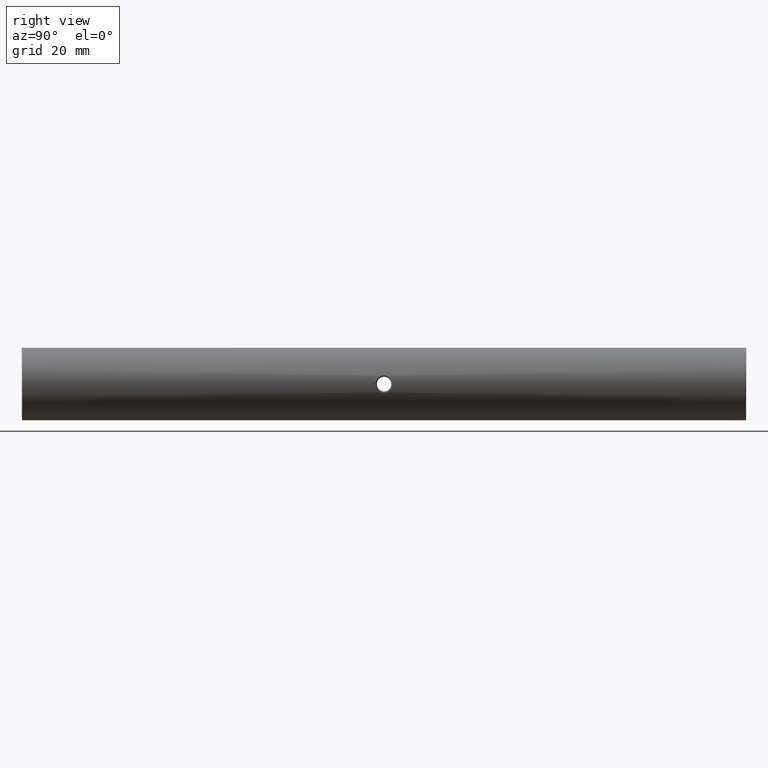
[diagram: clean part render]
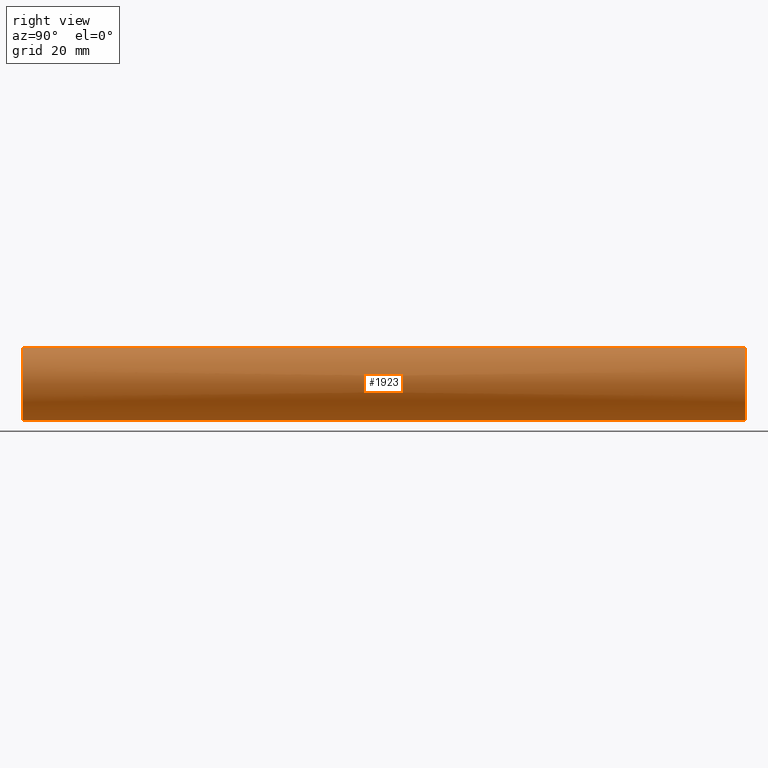
[diagram: same view with one face highlighted and labeled with its STEP entity id]
A machine part, right view. The second image highlights one B-rep face of the part: STEP entity #1923.
In plain terms, the highlighted cylindrical surface (edge-blend (fillet) strip) has radius 12.5 mm, axis along (-0, -1, -0).
Its self-contained STEP definition (entity closure, byte-faithful):
#6 = CARTESIAN_POINT ( 'NONE',  ( 12.50001742646893454, 2.811406832372070674, 0.09320650238485968242 ) ) ;
#17 = CARTESIAN_POINT ( 'NONE',  ( 0.000000000000000000, 125.0000000000000000, 0.000000000000000000 ) ) ;
#50 = FACE_OUTER_BOUND ( 'NONE', #2107, .T. ) ;
#56 = CARTESIAN_POINT ( 'NONE',  ( 12.28503912838034395, 1.717904660272273620, 2.310707177336799312 ) ) ;
#96 = AXIS2_PLACEMENT_3D ( 'NONE', #1967, #855, #1675 ) ;
#113 = CARTESIAN_POINT ( 'NONE',  ( 12.15669300407731868, -0.1806977645217724693, 2.909435551835375833 ) ) ;
#154 = LINE ( 'NONE', #1784, #834 ) ;
#157 = CIRCLE ( 'NONE', #96, 12.50000000000000000 ) ;
#170 = CARTESIAN_POINT ( 'NONE',  ( 12.43454952353370402, -2.526725548024669976, -1.289546388242241770 ) ) ;
#188 = CARTESIAN_POINT ( 'NONE',  ( 12.49999775423413695, -2.811326542414163132, 0.09552809925310641603 ) ) ;
#308 = CARTESIAN_POINT ( 'NONE',  ( 12.41846603794856030, 2.454658217890273164, -1.468101736930677026 ) ) ;
#323 = AXIS2_PLACEMENT_3D ( 'NONE', #17, #2213, #1939 ) ;
#345 = CARTESIAN_POINT ( 'NONE',  ( 12.15680486440276553, 0.3698971933534662138, 2.908968131743188579 ) ) ;
#366 = CARTESIAN_POINT ( 'NONE',  ( 0.000000000000000000, -124.7500000000000000, -12.50000000000000000 ) ) ;
#417 = CARTESIAN_POINT ( 'NONE',  ( 12.49455810811152467, -2.788668963899861630, 0.3809916402104622235 ) ) ;
#450 = CARTESIAN_POINT ( 'NONE',  ( 12.47844996932804484, -2.720695490879249334, 0.7572105576887994127 ) ) ;
#511 = DIRECTION ( 'NONE',  ( 0.000000000000000000, 0.000000000000000000, 1.000000000000000000 ) ) ;
#532 = DIRECTION ( 'NONE',  ( -0.000000000000000000, -1.000000000000000000, -0.000000000000000000 ) ) ;
#535 = B_SPLINE_CURVE_WITH_KNOTS ( 'NONE', 3,
 ( #559, #345, #1896, #1425, #2500, #56, #892, #1408, #818, #1356, #2485, #2012, #675, #1913, #2465, #609, #6, #1642, #1694, #2239, #2772, #308, #1153, #1097, #3258, #2721, #1947, #1117, #1928, #2185 ),
 .UNSPECIFIED., .F., .F.,
 ( 4, 2, 2, 2, 2, 2, 2, 2, 2, 2, 2, 2, 2, 2, 4 ),
 ( 0.5000000000000000000, 0.5625000000000000000, 0.5937500000000000000, 0.6250000000000000000, 0.6562500000000000000, 0.6874999999999998890, 0.7187499999999998890, 0.7343749999999998890, 0.7499999999999998890, 0.7812499999999998890, 0.8124999999999998890, 0.8750000000000000000, 0.9062500000000000000, 0.9375000000000000000, 1.000000000000000000 ),
 .UNSPECIFIED. ) ;
#559 = CARTESIAN_POINT ( 'NONE',  ( 12.15673029085246881, 0.002833888103306873157, 2.909279745137979933 ) ) ;
#561 = CARTESIAN_POINT ( 'NONE',  ( 12.22399603071617591, -1.249077798624699920, -2.613339121771871998 ) ) ;
#576 = CARTESIAN_POINT ( 'NONE',  ( 12.24318725703097677, -1.411610399206351341, -2.523076013741905932 ) ) ;
#589 = EDGE_CURVE ( 'NONE', #2177, #1485, #1850, .T. ) ;
#609 = CARTESIAN_POINT ( 'NONE',  ( 12.49892673353620864, 2.806890378891141680, 0.1896830695247965770 ) ) ;
#645 = CARTESIAN_POINT ( 'NONE',  ( 12.37415655752215038, -2.233985131134097912, -1.776478034581461252 ) ) ;
#661 = CARTESIAN_POINT ( 'NONE',  ( 12.17878772991662295, -0.7310015626569855707, 2.815779754070811602 ) ) ;
#675 = CARTESIAN_POINT ( 'NONE',  ( 12.47862501962675452, 2.721439315795266101, 0.7542223845553261974 ) ) ;
#715 = CARTESIAN_POINT ( 'NONE',  ( 1.530808498934191521E-15, -124.7500000000000000, 12.50000000000000000 ) ) ;
#818 = CARTESIAN_POINT ( 'NONE',  ( 12.37468298182074022, 2.236657868075531130, 1.772684525035449044 ) ) ;
#834 = VECTOR ( 'NONE', #1266, 1000.000000000000000 ) ;
#855 = DIRECTION ( 'NONE',  ( 0.000000000000000000, 1.000000000000000000, 0.000000000000000000 ) ) ;
#892 = CARTESIAN_POINT ( 'NONE',  ( 12.30724739963356740, 1.858754287803308536, 2.190976865712782384 ) ) ;
#931 = CARTESIAN_POINT ( 'NONE',  ( 12.49892345651008796, -2.806873595488794226, 0.1898667300704691974 ) ) ;
#997 = CARTESIAN_POINT ( 'NONE',  ( 12.15673029085246881, 0.002833888103306873157, 2.909279745137979933 ) ) ;
#1065 = EDGE_CURVE ( 'NONE', #2491, #1180, #157, .T. ) ;
#1097 = CARTESIAN_POINT ( 'NONE',  ( 12.30699028326935540, 1.857116966160690108, -2.192346392289706181 ) ) ;
#1105 = EDGE_LOOP ( 'NONE', ( #1210, #1448 ) ) ;
#1117 = CARTESIAN_POINT ( 'NONE',  ( 12.17558374076325123, 0.7370412096073619690, -2.833290726123229852 ) ) ;
#1153 = CARTESIAN_POINT ( 'NONE',  ( 12.37399410913008069, 2.245426296468445937, -1.791044369160586180 ) ) ;
#1180 = VERTEX_POINT ( 'NONE', #366 ) ;
#1210 = ORIENTED_EDGE ( 'NONE', *, *, #1327, .T. ) ;
#1224 = AXIS2_PLACEMENT_3D ( 'NONE', #1849, #2367, #511 ) ;
#1259 = CARTESIAN_POINT ( 'NONE',  ( 12.50000448113715024, -2.811349800629793450, -0.1901732525159168796 ) ) ;
#1266 = DIRECTION ( 'NONE',  ( -0.000000000000000000, -1.000000000000000000, -0.000000000000000000 ) ) ;
#1326 = CARTESIAN_POINT ( 'NONE',  ( 1.530808498934191521E-15, 125.0000000000000000, 12.50000000000000000 ) ) ;
#1327 = EDGE_CURVE ( 'NONE', #3048, #3067, #1639, .T. ) ;
#1356 = CARTESIAN_POINT ( 'NONE',  ( 12.41570173647606445, 2.439719071827106678, 1.457923083269265341 ) ) ;
#1376 = CARTESIAN_POINT ( 'NONE',  ( 12.15674719806125026, -0.3720517654760188697, -2.909209096632632718 ) ) ;
#1397 = ORIENTED_EDGE ( 'NONE', *, *, #589, .T. ) ;
#1408 = CARTESIAN_POINT ( 'NONE',  ( 12.35225443296574177, 2.119287620186417698, 1.921074856728379965 ) ) ;
#1425 = CARTESIAN_POINT ( 'NONE',  ( 12.22404049168225448, 1.249370825544497743, 2.613123236432066676 ) ) ;
#1448 = ORIENTED_EDGE ( 'NONE', *, *, #2733, .T. ) ;
#1476 = CARTESIAN_POINT ( 'NONE',  ( 12.41559087114069371, -2.439236040037762621, -1.459016119810419676 ) ) ;
#1485 = VERTEX_POINT ( 'NONE', #1493 ) ;
#1493 = CARTESIAN_POINT ( 'NONE',  ( 1.530808498934191521E-15, 124.7500000000000000, 12.50000000000000000 ) ) ;
#1639 = B_SPLINE_CURVE_WITH_KNOTS ( 'NONE', 3,
 ( #1899, #1376, #2468, #561, #576, #1645, #1794, #2310, #645, #1476, #170, #2325, #2057, #2889, #1259, #188, #931, #417, #1726, #450, #2809, #3153, #2568, #2000, #3404, #3118, #1776, #3386, #661, #2039, #113, #2848 ),
 .UNSPECIFIED., .F., .F.,
 ( 4, 2, 2, 2, 2, 2, 2, 2, 2, 2, 2, 2, 2, 2, 2, 4 ),
 ( 0.000000000000000000, 0.06250000000000008327, 0.09375000000000009714, 0.1250000000000001110, 0.1562500000000000833, 0.1875000000000000833, 0.2187500000000000555, 0.2500000000000000555, 0.2656250000000000555, 0.2812500000000001110, 0.3125000000000000555, 0.3437500000000000555, 0.3750000000000000555, 0.4375000000000000555, 0.4687500000000000555, 0.5000000000000000000 ),
 .UNSPECIFIED. ) ;
#1642 = CARTESIAN_POINT ( 'NONE',  ( 12.49996450756690081, 2.811186608725308567, -0.1933384752796481199 ) ) ;
#1645 = CARTESIAN_POINT ( 'NONE',  ( 12.28475378283832775, -1.716019999151210618, -2.312222151283232385 ) ) ;
#1675 = DIRECTION ( 'NONE',  ( 0.000000000000000000, 0.000000000000000000, 1.000000000000000000 ) ) ;
#1694 = CARTESIAN_POINT ( 'NONE',  ( 12.49555223107355495, 2.793029426824398254, -0.3826445215063849492 ) ) ;
#1726 = CARTESIAN_POINT ( 'NONE',  ( 12.49126368126894171, -2.774893379189041109, 0.4765522127071508685 ) ) ;
#1776 = CARTESIAN_POINT ( 'NONE',  ( 12.24006107958186362, -1.419196978154050326, 2.540367849486294016 ) ) ;
#1784 = CARTESIAN_POINT ( 'NONE',  ( 0.000000000000000000, 125.0000000000000000, -12.50000000000000000 ) ) ;
#1794 = CARTESIAN_POINT ( 'NONE',  ( 12.30744859520106971, -1.859929547505143832, -2.189782020505094184 ) ) ;
#1849 = CARTESIAN_POINT ( 'NONE',  ( 0.000000000000000000, 124.7500000000000000, 0.000000000000000000 ) ) ;
#1850 = CIRCLE ( 'NONE', #1224, 12.50000000000000000 ) ;
#1896 = CARTESIAN_POINT ( 'NONE',  ( 12.17588935286642560, 0.7410628047933065510, 2.831966530704115304 ) ) ;
#1899 = CARTESIAN_POINT ( 'NONE',  ( 12.15672993712804306, -1.863472483959460746E-17, -2.909281223212155876 ) ) ;
#1913 = CARTESIAN_POINT ( 'NONE',  ( 12.49135351440077457, 2.775271561243099594, 0.4741527440839961027 ) ) ;
#1923 = ADVANCED_FACE ( 'NONE', ( #2180, #50 ), #2697, .T. ) ;
#1928 = CARTESIAN_POINT ( 'NONE',  ( 12.15671288399387606, 0.3675727491824572479, -2.909352481482071262 ) ) ;
#1939 = DIRECTION ( 'NONE',  ( 0.000000000000000000, 0.000000000000000000, -1.000000000000000000 ) ) ;
#1947 = CARTESIAN_POINT ( 'NONE',  ( 12.22381967107833489, 1.247432840029742085, -2.614158868685482418 ) ) ;
#1967 = CARTESIAN_POINT ( 'NONE',  ( 0.000000000000000000, -124.7500000000000000, 0.000000000000000000 ) ) ;
#2000 = CARTESIAN_POINT ( 'NONE',  ( 12.37419463223973537, -2.234152559100736291, 1.776081484265987775 ) ) ;
#2012 = CARTESIAN_POINT ( 'NONE',  ( 12.46607796419966796, 2.667883626727120649, 0.9372525015748877086 ) ) ;
#2039 = CARTESIAN_POINT ( 'NONE',  ( 12.16118795379043149, -0.3665779444042563395, 2.890846544938908025 ) ) ;
#2057 = CARTESIAN_POINT ( 'NONE',  ( 12.47843146788946456, -2.720612109542535073, -0.7578108818489559528 ) ) ;
#2103 = EDGE_CURVE ( 'NONE', #2177, #1180, #154, .T. ) ;
#2107 = EDGE_LOOP ( 'NONE', ( #1397, #2575, #2637, #3449 ) ) ;
#2177 = VERTEX_POINT ( 'NONE', #3127 ) ;
#2180 = FACE_BOUND ( 'NONE', #1105, .T. ) ;
#2185 = CARTESIAN_POINT ( 'NONE',  ( 12.15672993712804306, -1.863472483959460746E-17, -2.909281223212155876 ) ) ;
#2213 = DIRECTION ( 'NONE',  ( -0.000000000000000000, -1.000000000000000000, -0.000000000000000000 ) ) ;
#2239 = CARTESIAN_POINT ( 'NONE',  ( 12.47842592775034909, 2.720596944431871833, -0.7577128446674264994 ) ) ;
#2310 = CARTESIAN_POINT ( 'NONE',  ( 12.35211156147484068, -2.118449957407666950, -1.921919923858366408 ) ) ;
#2325 = CARTESIAN_POINT ( 'NONE',  ( 12.46591636556028959, -2.667156340677508286, -0.9390851439017793290 ) ) ;
#2367 = DIRECTION ( 'NONE',  ( -0.000000000000000000, -1.000000000000000000, -0.000000000000000000 ) ) ;
#2465 = CARTESIAN_POINT ( 'NONE',  ( 12.49456030282725294, 2.788675002980555817, 0.3809356851017746681 ) ) ;
#2468 = CARTESIAN_POINT ( 'NONE',  ( 12.17565812561647043, -0.7382676078110291806, -2.832989676208212071 ) ) ;
#2485 = CARTESIAN_POINT ( 'NONE',  ( 12.43441822690687815, 2.526133916738232621, 1.291040440721708871 ) ) ;
#2491 = VERTEX_POINT ( 'NONE', #715 ) ;
#2500 = CARTESIAN_POINT ( 'NONE',  ( 12.24348497288890059, 1.413992737147318213, 2.521632360966912678 ) ) ;
#2568 = CARTESIAN_POINT ( 'NONE',  ( 12.41527688609097879, -2.437701706823466541, 1.461525941267633355 ) ) ;
#2575 = ORIENTED_EDGE ( 'NONE', *, *, #3482, .T. ) ;
#2637 = ORIENTED_EDGE ( 'NONE', *, *, #1065, .T. ) ;
#2697 = CYLINDRICAL_SURFACE ( 'NONE', #323, 12.50000000000000000 ) ;
#2721 = CARTESIAN_POINT ( 'NONE',  ( 12.24279688158376800, 1.408532263457458633, -2.524982852477427375 ) ) ;
#2733 = EDGE_CURVE ( 'NONE', #3067, #3048, #535, .T. ) ;
#2772 = CARTESIAN_POINT ( 'NONE',  ( 12.46563277825067395, 2.665916658992808497, -0.9428174792702851414 ) ) ;
#2809 = CARTESIAN_POINT ( 'NONE',  ( 12.46593248198728077, -2.667232040033384433, 0.9390614387013463960 ) ) ;
#2820 = VECTOR ( 'NONE', #532, 1000.000000000000000 ) ;
#2848 = CARTESIAN_POINT ( 'NONE',  ( 12.15673029085246881, 0.002833888103306873157, 2.909279745137979933 ) ) ;
#2889 = CARTESIAN_POINT ( 'NONE',  ( 12.49560729946630033, -2.793270608671313049, -0.3812183744090862358 ) ) ;
#2983 = LINE ( 'NONE', #1326, #2820 ) ;
#3048 = VERTEX_POINT ( 'NONE', #3132 ) ;
#3067 = VERTEX_POINT ( 'NONE', #997 ) ;
#3118 = CARTESIAN_POINT ( 'NONE',  ( 12.28453155931145524, -1.727176166537208069, 2.327059802228868435 ) ) ;
#3127 = CARTESIAN_POINT ( 'NONE',  ( 0.000000000000000000, 124.7500000000000000, -12.50000000000000000 ) ) ;
#3132 = CARTESIAN_POINT ( 'NONE',  ( 12.15672993712804306, -1.863472483959460746E-17, -2.909281223212155876 ) ) ;
#3153 = CARTESIAN_POINT ( 'NONE',  ( 12.43435727361608834, -2.525861274844221516, 1.291537155172947759 ) ) ;
#3258 = CARTESIAN_POINT ( 'NONE',  ( 12.28451167132705102, 1.714462949016041460, -2.313522614121517940 ) ) ;
#3386 = CARTESIAN_POINT ( 'NONE',  ( 12.19162504397920621, -0.9068209271991628517, 2.760420221210648783 ) ) ;
#3404 = CARTESIAN_POINT ( 'NONE',  ( 12.35209908205999518, -2.118429199089258752, 1.922076742924115011 ) ) ;
#3449 = ORIENTED_EDGE ( 'NONE', *, *, #2103, .F. ) ;
#3482 = EDGE_CURVE ( 'NONE', #1485, #2491, #2983, .T. ) ;